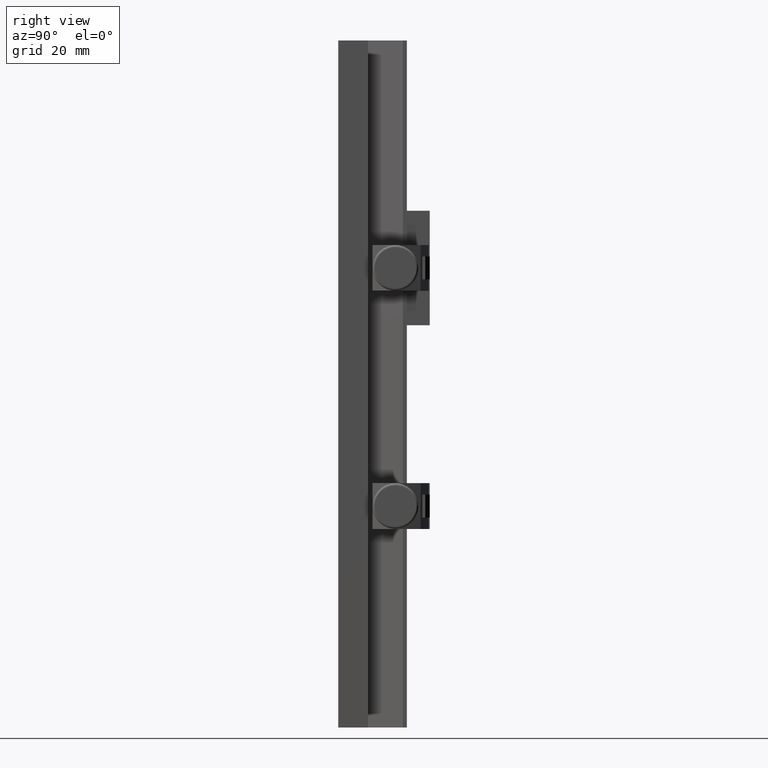
[diagram: clean part render]
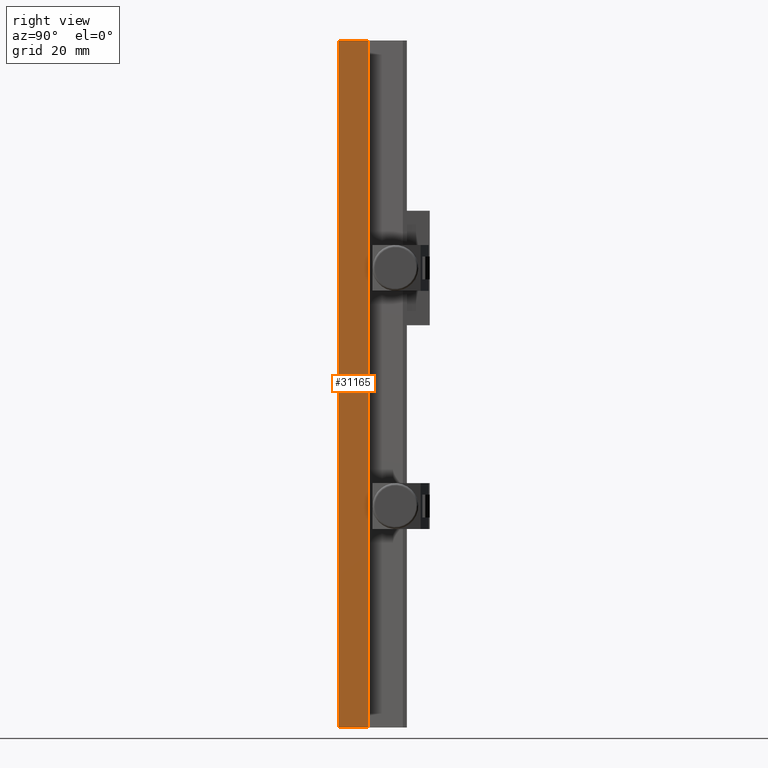
[diagram: same view with one face highlighted and labeled with its STEP entity id]
A machine part, right view. The second image highlights one B-rep face of the part: STEP entity #31165.
In plain terms, the highlighted planar face has unit normal (-1, -0, 0).
Its self-contained STEP definition (entity closure, byte-faithful):
#346 = EDGE_CURVE ( 'NONE', #19983, #20881, #21751, .T. ) ;
#1164 = B_SPLINE_CURVE_WITH_KNOTS ( 'NONE', 3,
 ( #33069, #32813, #21449, #28850 ),
 .UNSPECIFIED., .F., .F.,
 ( 4, 4 ),
 ( 0.000000000000000000, 1.000000000000000000 ),
 .UNSPECIFIED. ) ;
#5653 = EDGE_LOOP ( 'NONE', ( #19036, #29487, #13001, #45865 ) ) ;
#8174 = DIRECTION ( 'NONE',  ( -5.337610695313250398E-16, 1.000000000000000000, 0.000000000000000000 ) ) ;
#8445 = CARTESIAN_POINT ( 'NONE',  ( -155.0211503403900224, -10.69909532202733615, 75.00000000000000000 ) ) ;
#10524 = CARTESIAN_POINT ( 'NONE',  ( -155.0211503403900224, -6.365761988693995121, -75.00000000000000000 ) ) ;
#10928 = VERTEX_POINT ( 'NONE', #47073 ) ;
#11596 = FACE_OUTER_BOUND ( 'NONE', #5653, .T. ) ;
#12113 = CARTESIAN_POINT ( 'NONE',  ( -155.0211503403900224, -12.86576198869400045, 75.00000000000000000 ) ) ;
#12944 = CARTESIAN_POINT ( 'NONE',  ( -155.0211503403900224, -12.86576198869400045, 75.00000000000000000 ) ) ;
#13001 = ORIENTED_EDGE ( 'NONE', *, *, #346, .F. ) ;
#15051 = EDGE_CURVE ( 'NONE', #20881, #10928, #38858, .T. ) ;
#16720 = AXIS2_PLACEMENT_3D ( 'NONE', #12113, #48798, #8174 ) ;
#17336 = CARTESIAN_POINT ( 'NONE',  ( -155.0211503403900224, -6.365761988693995121, -75.00000000000000000 ) ) ;
#18459 = CARTESIAN_POINT ( 'NONE',  ( -155.0211503403900224, -12.86576198869400045, -75.00000000000000000 ) ) ;
#18828 = CARTESIAN_POINT ( 'NONE',  ( -155.0211503403900224, -12.86576198869400045, -75.00000000000000000 ) ) ;
#19036 = ORIENTED_EDGE ( 'NONE', *, *, #49412, .T. ) ;
#19983 = VERTEX_POINT ( 'NONE', #18828 ) ;
#20881 = VERTEX_POINT ( 'NONE', #12944 ) ;
#21369 = CARTESIAN_POINT ( 'NONE',  ( -155.0211503403900224, -6.365761988693995121, 75.00000000000000000 ) ) ;
#21449 = CARTESIAN_POINT ( 'NONE',  ( -155.0211503403900224, -6.365761988694000451, 25.00000000000000000 ) ) ;
#21751 = B_SPLINE_CURVE_WITH_KNOTS ( 'NONE', 3,
 ( #50347, #22657, #25567, #30310 ),
 .UNSPECIFIED., .F., .F.,
 ( 4, 4 ),
 ( 0.000000000000000000, 1.000000000000000000 ),
 .UNSPECIFIED. ) ;
#22657 = CARTESIAN_POINT ( 'NONE',  ( -155.0211503403900224, -12.86576198869400045, -25.00000000000000000 ) ) ;
#25072 = CARTESIAN_POINT ( 'NONE',  ( -155.0211503403900224, -12.86576198869400045, 75.00000000000000000 ) ) ;
#25567 = CARTESIAN_POINT ( 'NONE',  ( -155.0211503403900224, -12.86576198869400045, 25.00000000000000000 ) ) ;
#27704 = PLANE ( 'NONE',  #16720 ) ;
#28850 = CARTESIAN_POINT ( 'NONE',  ( -155.0211503403900224, -6.365761988693995121, 75.00000000000000000 ) ) ;
#29487 = ORIENTED_EDGE ( 'NONE', *, *, #15051, .F. ) ;
#30310 = CARTESIAN_POINT ( 'NONE',  ( -155.0211503403900224, -12.86576198869400045, 75.00000000000000000 ) ) ;
#30592 = CARTESIAN_POINT ( 'NONE',  ( -155.0211503403900224, -10.69909532202733615, -75.00000000000000000 ) ) ;
#31165 = ADVANCED_FACE ( 'NONE', ( #11596 ), #27704, .F. ) ;
#31978 = B_SPLINE_CURVE_WITH_KNOTS ( 'NONE', 3,
 ( #18459, #30592, #46673, #10524 ),
 .UNSPECIFIED., .F., .F.,
 ( 4, 4 ),
 ( 0.000000000000000000, 1.000000000000000000 ),
 .UNSPECIFIED. ) ;
#32813 = CARTESIAN_POINT ( 'NONE',  ( -155.0211503403900224, -6.365761988694000451, -25.00000000000000000 ) ) ;
#33069 = CARTESIAN_POINT ( 'NONE',  ( -155.0211503403900224, -6.365761988693995121, -75.00000000000000000 ) ) ;
#35646 = VERTEX_POINT ( 'NONE', #17336 ) ;
#38858 = B_SPLINE_CURVE_WITH_KNOTS ( 'NONE', 3,
 ( #25072, #8445, #44583, #21369 ),
 .UNSPECIFIED., .F., .F.,
 ( 4, 4 ),
 ( 0.000000000000000000, 1.000000000000000000 ),
 .UNSPECIFIED. ) ;
#39844 = EDGE_CURVE ( 'NONE', #19983, #35646, #31978, .T. ) ;
#44583 = CARTESIAN_POINT ( 'NONE',  ( -155.0211503403900224, -8.532428655360664749, 75.00000000000000000 ) ) ;
#45865 = ORIENTED_EDGE ( 'NONE', *, *, #39844, .T. ) ;
#46673 = CARTESIAN_POINT ( 'NONE',  ( -155.0211503403900224, -8.532428655360664749, -75.00000000000000000 ) ) ;
#47073 = CARTESIAN_POINT ( 'NONE',  ( -155.0211503403900224, -6.365761988693995121, 75.00000000000000000 ) ) ;
#48798 = DIRECTION ( 'NONE',  ( -1.000000000000000000, -5.337610695313250398E-16, 0.000000000000000000 ) ) ;
#49412 = EDGE_CURVE ( 'NONE', #35646, #10928, #1164, .T. ) ;
#50347 = CARTESIAN_POINT ( 'NONE',  ( -155.0211503403900224, -12.86576198869400045, -75.00000000000000000 ) ) ;